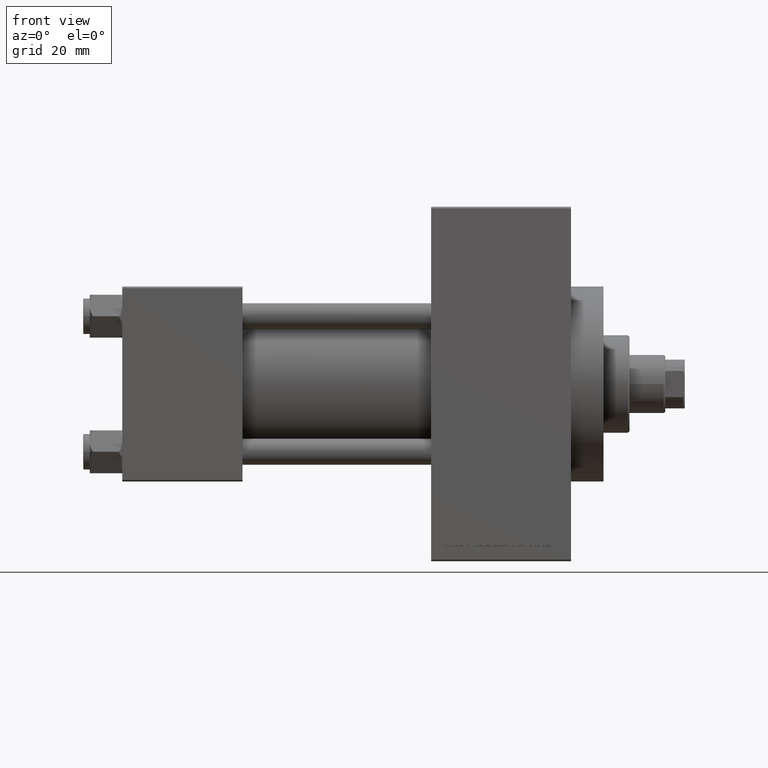
[diagram: clean part render]
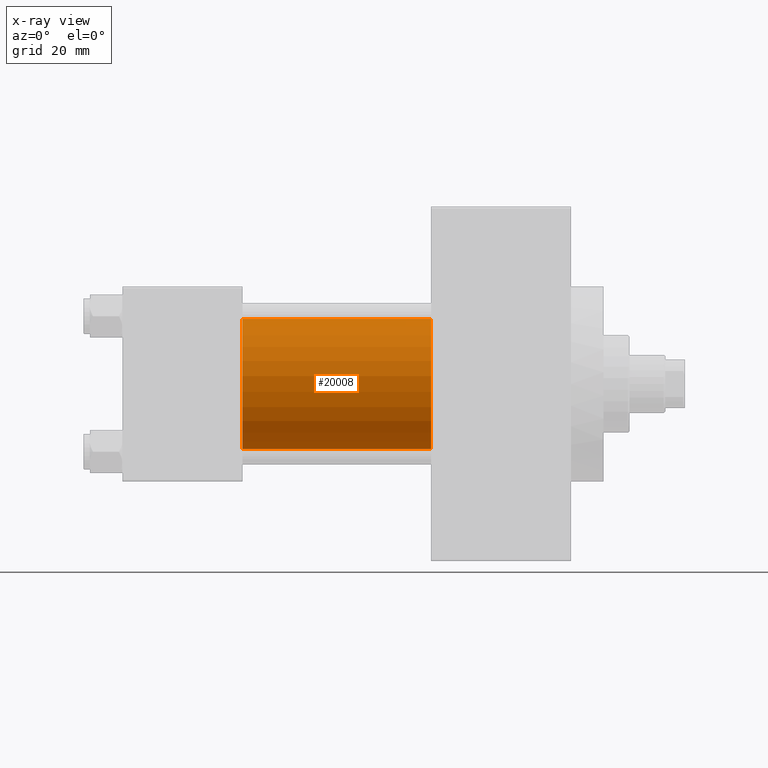
[diagram: x-ray — body ghosted, one internal face saturated and labeled with its STEP entity id]
A machine part, front view, then the same camera in x-ray: the body is ghosted and one INTERNAL B-rep face — a face not visible from any outside direction — is saturated and labeled: STEP entity #20008.
In plain terms, the highlighted cylindrical surface (partial cylindrical patch) has radius 20 mm, axis along (-1, -0, -0).
Its self-contained STEP definition (entity closure, byte-faithful):
#2609 = CARTESIAN_POINT ( 'NONE',  ( 95.00000000000000000, -2.602085213965210642E-15, 0.000000000000000000 ) ) ;
#4366 = EDGE_CURVE ( 'NONE', #31753, #16113, #45916, .T. ) ;
#5930 = DIRECTION ( 'NONE',  ( 1.000000000000000000, 0.000000000000000000, 0.000000000000000000 ) ) ;
#7574 = DIRECTION ( 'NONE',  ( 0.000000000000000000, 0.000000000000000000, -1.000000000000000000 ) ) ;
#8640 = VERTEX_POINT ( 'NONE', #27687 ) ;
#8706 = CARTESIAN_POINT ( 'NONE',  ( 37.00000000000000000, -1.527916156705046464E-16, -20.00000000000000000 ) ) ;
#9734 = DIRECTION ( 'NONE',  ( 0.000000000000000000, 0.000000000000000000, 1.000000000000000000 ) ) ;
#13087 = DIRECTION ( 'NONE',  ( 0.000000000000000000, 0.000000000000000000, -1.000000000000000000 ) ) ;
#13467 = CYLINDRICAL_SURFACE ( 'NONE', #32813, 20.00000000000000000 ) ;
#14612 = VECTOR ( 'NONE', #25074, 1000.000000000000000 ) ;
#16113 = VERTEX_POINT ( 'NONE', #8706 ) ;
#20008 = ADVANCED_FACE ( 'NONE', ( #28426 ), #13467, .F. ) ;
#20345 = LINE ( 'NONE', #28821, #14612 ) ;
#20561 = DIRECTION ( 'NONE',  ( 1.000000000000000000, 0.000000000000000000, 0.000000000000000000 ) ) ;
#23470 = LINE ( 'NONE', #46154, #38928 ) ;
#24684 = CARTESIAN_POINT ( 'NONE',  ( 95.00000000000000000, -2.602085213965210642E-15, 0.000000000000000000 ) ) ;
#25074 = DIRECTION ( 'NONE',  ( -1.000000000000000000, -0.000000000000000000, -0.000000000000000000 ) ) ;
#27476 = CARTESIAN_POINT ( 'NONE',  ( 37.00000000000000000, -2.602085213965210642E-15, 20.00000000000000000 ) ) ;
#27687 = CARTESIAN_POINT ( 'NONE',  ( 95.00000000000000000, -1.527916156705046464E-16, -20.00000000000000000 ) ) ;
#28164 = DIRECTION ( 'NONE',  ( -1.000000000000000000, -0.000000000000000000, -0.000000000000000000 ) ) ;
#28426 = FACE_OUTER_BOUND ( 'NONE', #32244, .T. ) ;
#28821 = CARTESIAN_POINT ( 'NONE',  ( 95.00000000000000000, -1.527916156705046464E-16, -20.00000000000000000 ) ) ;
#29274 = ORIENTED_EDGE ( 'NONE', *, *, #49277, .T. ) ;
#30023 = CARTESIAN_POINT ( 'NONE',  ( 37.00000000000000000, -2.602085213965210642E-15, 0.000000000000000000 ) ) ;
#30802 = AXIS2_PLACEMENT_3D ( 'NONE', #30023, #5930, #7574 ) ;
#31753 = VERTEX_POINT ( 'NONE', #27476 ) ;
#31828 = ORIENTED_EDGE ( 'NONE', *, *, #40646, .F. ) ;
#32244 = EDGE_LOOP ( 'NONE', ( #37997, #29274, #43238, #31828 ) ) ;
#32813 = AXIS2_PLACEMENT_3D ( 'NONE', #24684, #28164, #9734 ) ;
#33097 = EDGE_CURVE ( 'NONE', #46559, #8640, #37105, .T. ) ;
#36289 = AXIS2_PLACEMENT_3D ( 'NONE', #2609, #20561, #13087 ) ;
#37105 = CIRCLE ( 'NONE', #36289, 20.00000000000000000 ) ;
#37705 = DIRECTION ( 'NONE',  ( -1.000000000000000000, -0.000000000000000000, -0.000000000000000000 ) ) ;
#37854 = CARTESIAN_POINT ( 'NONE',  ( 95.00000000000000000, -2.602085213965210642E-15, 20.00000000000000000 ) ) ;
#37997 = ORIENTED_EDGE ( 'NONE', *, *, #33097, .T. ) ;
#38928 = VECTOR ( 'NONE', #37705, 1000.000000000000000 ) ;
#40646 = EDGE_CURVE ( 'NONE', #46559, #31753, #23470, .T. ) ;
#43238 = ORIENTED_EDGE ( 'NONE', *, *, #4366, .F. ) ;
#45916 = CIRCLE ( 'NONE', #30802, 20.00000000000000000 ) ;
#46154 = CARTESIAN_POINT ( 'NONE',  ( 95.00000000000000000, -2.602085213965210642E-15, 20.00000000000000000 ) ) ;
#46559 = VERTEX_POINT ( 'NONE', #37854 ) ;
#49277 = EDGE_CURVE ( 'NONE', #8640, #16113, #20345, .T. ) ;